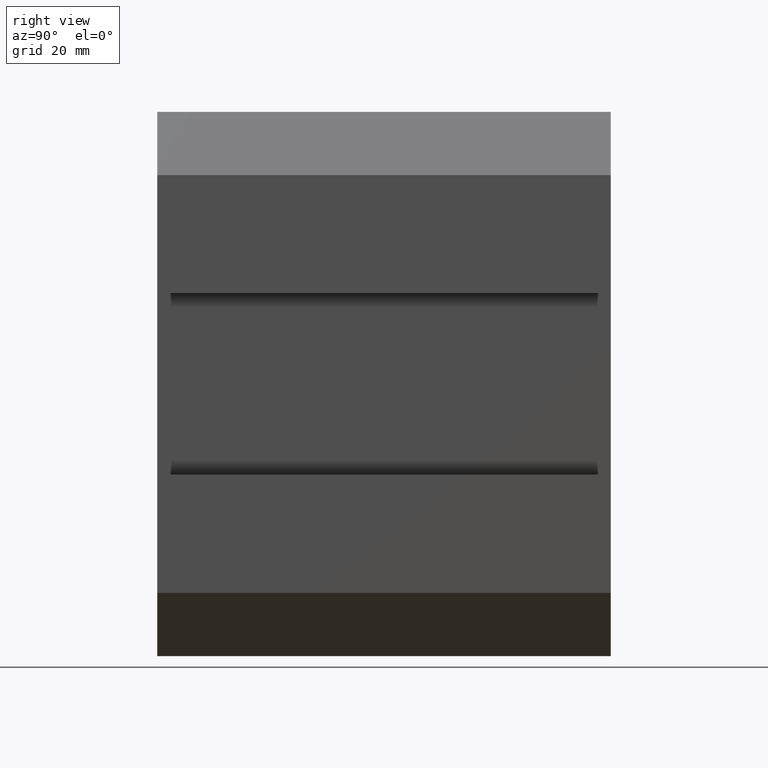
[diagram: clean part render]
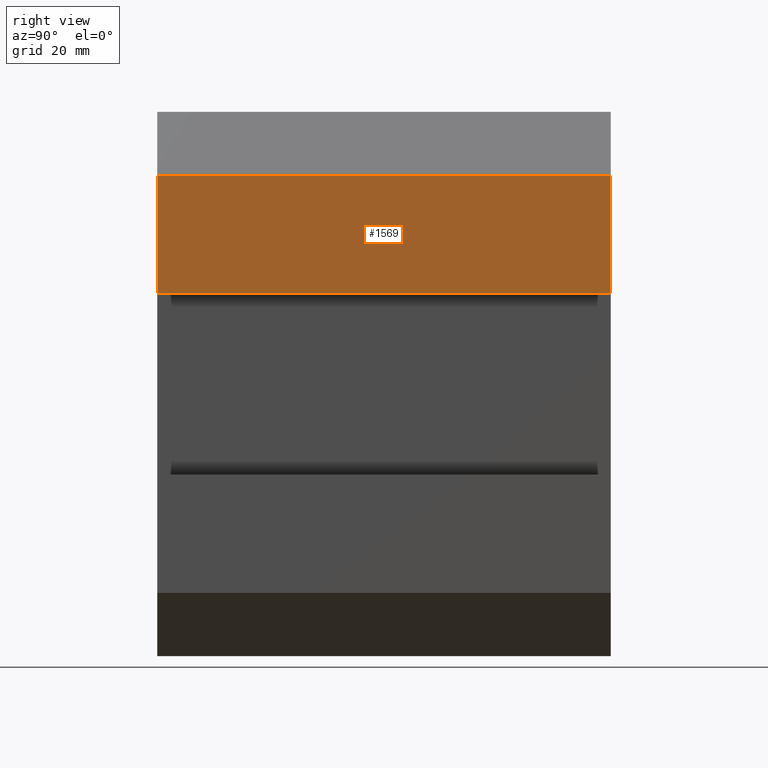
[diagram: same view with one face highlighted and labeled with its STEP entity id]
A machine part, right view. The second image highlights one B-rep face of the part: STEP entity #1569.
In plain terms, the highlighted planar face has unit normal (1, 0, 0).
Its self-contained STEP definition (entity closure, byte-faithful):
#63=PLANE('',#1746);
#141=FACE_OUTER_BOUND('',#219,.T.);
#219=EDGE_LOOP('',(#1279,#1280,#1281,#1282));
#376=LINE('',#2632,#528);
#377=LINE('',#2635,#529);
#378=LINE('',#2637,#530);
#379=LINE('',#2638,#531);
#528=VECTOR('',#2175,10.);
#529=VECTOR('',#2178,10.);
#530=VECTOR('',#2179,10.);
#531=VECTOR('',#2180,10.);
#765=VERTEX_POINT('',#2628);
#766=VERTEX_POINT('',#2630);
#767=VERTEX_POINT('',#2634);
#768=VERTEX_POINT('',#2636);
#984=EDGE_CURVE('',#765,#766,#376,.T.);
#985=EDGE_CURVE('',#767,#765,#377,.T.);
#986=EDGE_CURVE('',#768,#766,#378,.T.);
#987=EDGE_CURVE('',#767,#768,#379,.T.);
#1279=ORIENTED_EDGE('',*,*,#985,.T.);
#1280=ORIENTED_EDGE('',*,*,#984,.T.);
#1281=ORIENTED_EDGE('',*,*,#986,.F.);
#1282=ORIENTED_EDGE('',*,*,#987,.F.);
#1569=ADVANCED_FACE('',(#141),#63,.T.);
#1746=AXIS2_PLACEMENT_3D('',#2633,#2176,#2177);
#2175=DIRECTION('',(0.,1.,0.));
#2176=DIRECTION('center_axis',(1.,0.,8.52582311447966E-17));
#2177=DIRECTION('ref_axis',(8.52582311447966E-17,0.,-1.));
#2178=DIRECTION('',(8.52582311447966E-17,0.,-1.));
#2179=DIRECTION('',(8.52582311447966E-17,0.,-1.));
#2180=DIRECTION('',(0.,1.,0.));
#2628=CARTESIAN_POINT('',(20.,0.,20.));
#2630=CARTESIAN_POINT('',(20.,100.,20.));
#2632=CARTESIAN_POINT('',(20.,0.,20.));
#2633=CARTESIAN_POINT('Origin',(20.,0.,46.0437733628236));
#2634=CARTESIAN_POINT('',(20.,0.,46.0437733628236));
#2635=CARTESIAN_POINT('',(20.,0.,46.0437733628236));
#2636=CARTESIAN_POINT('',(20.,100.,46.0437733628236));
#2637=CARTESIAN_POINT('',(20.,100.,46.0437733628236));
#2638=CARTESIAN_POINT('',(20.,0.,46.0437733628236));